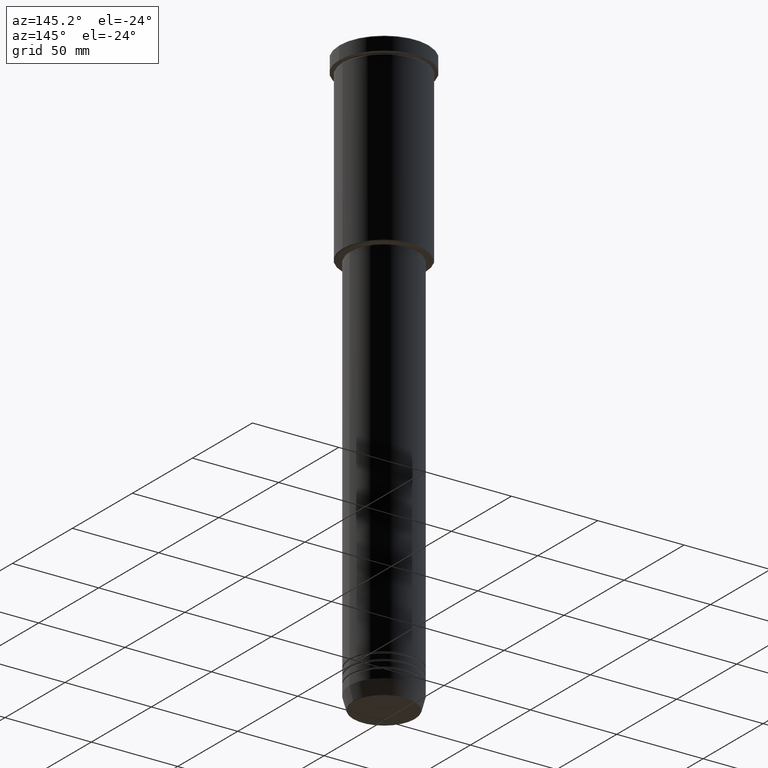
[diagram: clean part render]
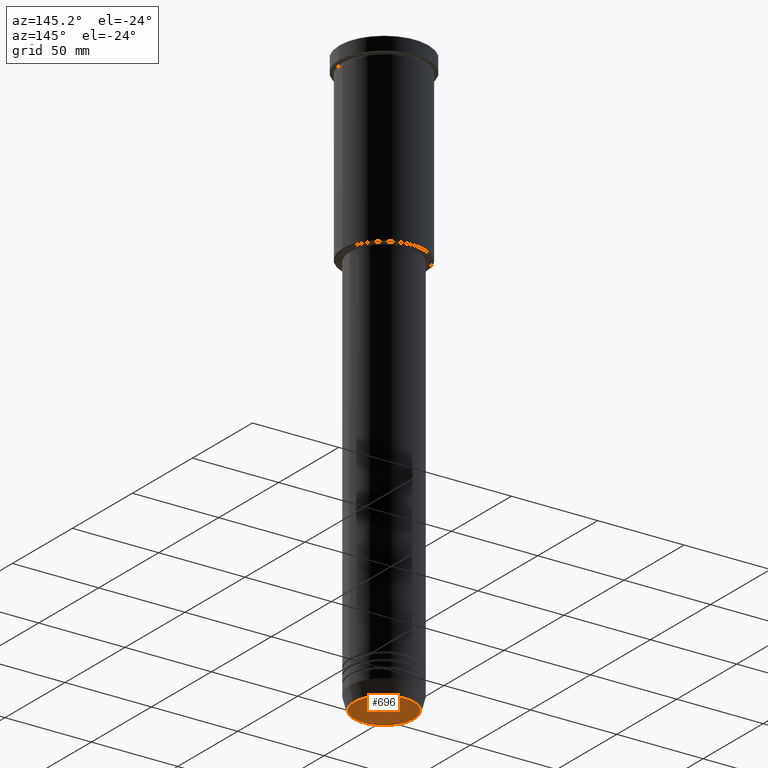
[diagram: same view with one face highlighted and labeled with its STEP entity id]
A machine part, auxiliary view. The second image highlights one B-rep face of the part: STEP entity #696.
In plain terms, the highlighted planar face has unit normal (0, -0, 1).
Its self-contained STEP definition (entity closure, byte-faithful):
#77 = DIRECTION ( 'NONE',  ( 1.000000000000000000, 0.000000000000000000, 0.000000000000000000 ) ) ;
#169 = DIRECTION ( 'NONE',  ( 0.000000000000000000, 0.000000000000000000, -1.000000000000000000 ) ) ;
#177 = AXIS2_PLACEMENT_3D ( 'NONE', #523, #874, #758 ) ;
#180 = EDGE_CURVE ( 'NONE', #1049, #1080, #313, .T. ) ;
#233 = ORIENTED_EDGE ( 'NONE', *, *, #1067, .T. ) ;
#246 = CARTESIAN_POINT ( 'NONE',  ( 17.47274296656153680, 0.000000000000000000, -340.0000000000000000 ) ) ;
#313 = CIRCLE ( 'NONE', #666, 17.47274296656153680 ) ;
#333 = PLANE ( 'NONE',  #177 ) ;
#345 = EDGE_LOOP ( 'NONE', ( #233, #1177 ) ) ;
#425 = FACE_OUTER_BOUND ( 'NONE', #345, .T. ) ;
#441 = DIRECTION ( 'NONE',  ( 0.000000000000000000, 0.000000000000000000, -1.000000000000000000 ) ) ;
#523 = CARTESIAN_POINT ( 'NONE',  ( 0.000000000000000000, 0.000000000000000000, -340.0000000000000000 ) ) ;
#666 = AXIS2_PLACEMENT_3D ( 'NONE', #977, #441, #950 ) ;
#675 = CIRCLE ( 'NONE', #1005, 17.47274296656153680 ) ;
#696 = ADVANCED_FACE ( 'NONE', ( #425 ), #333, .F. ) ;
#758 = DIRECTION ( 'NONE',  ( 1.000000000000000000, 0.000000000000000000, 0.000000000000000000 ) ) ;
#766 = CARTESIAN_POINT ( 'NONE',  ( -17.47274296656153680, 2.169366823916868503E-15, -340.0000000000000000 ) ) ;
#874 = DIRECTION ( 'NONE',  ( 0.000000000000000000, -0.000000000000000000, 1.000000000000000000 ) ) ;
#950 = DIRECTION ( 'NONE',  ( 1.000000000000000000, 0.000000000000000000, 0.000000000000000000 ) ) ;
#977 = CARTESIAN_POINT ( 'NONE',  ( 0.000000000000000000, 0.000000000000000000, -340.0000000000000000 ) ) ;
#994 = CARTESIAN_POINT ( 'NONE',  ( 0.000000000000000000, 0.000000000000000000, -340.0000000000000000 ) ) ;
#1005 = AXIS2_PLACEMENT_3D ( 'NONE', #994, #169, #77 ) ;
#1049 = VERTEX_POINT ( 'NONE', #766 ) ;
#1067 = EDGE_CURVE ( 'NONE', #1080, #1049, #675, .T. ) ;
#1080 = VERTEX_POINT ( 'NONE', #246 ) ;
#1177 = ORIENTED_EDGE ( 'NONE', *, *, #180, .T. ) ;